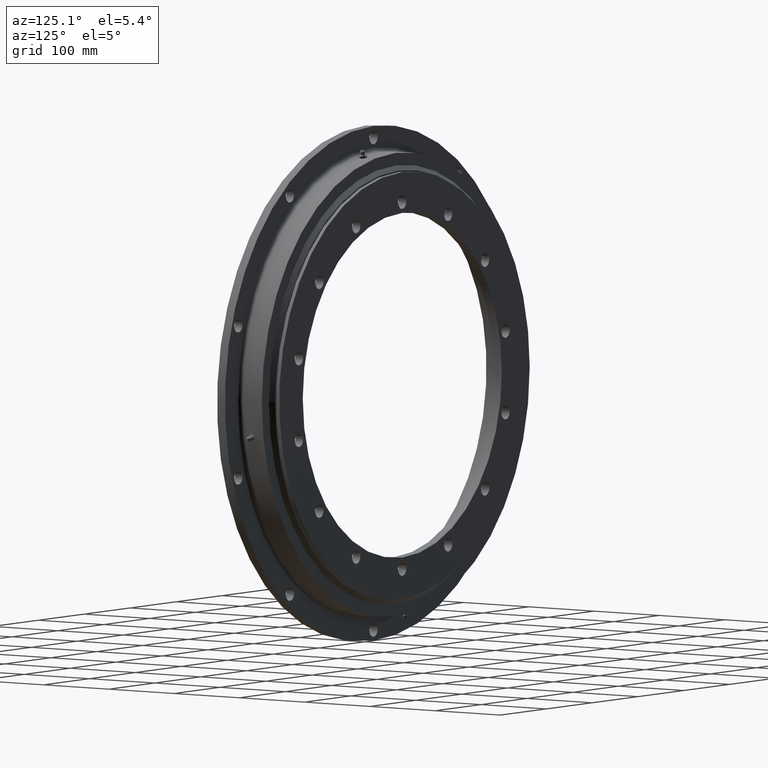
[diagram: clean part render]
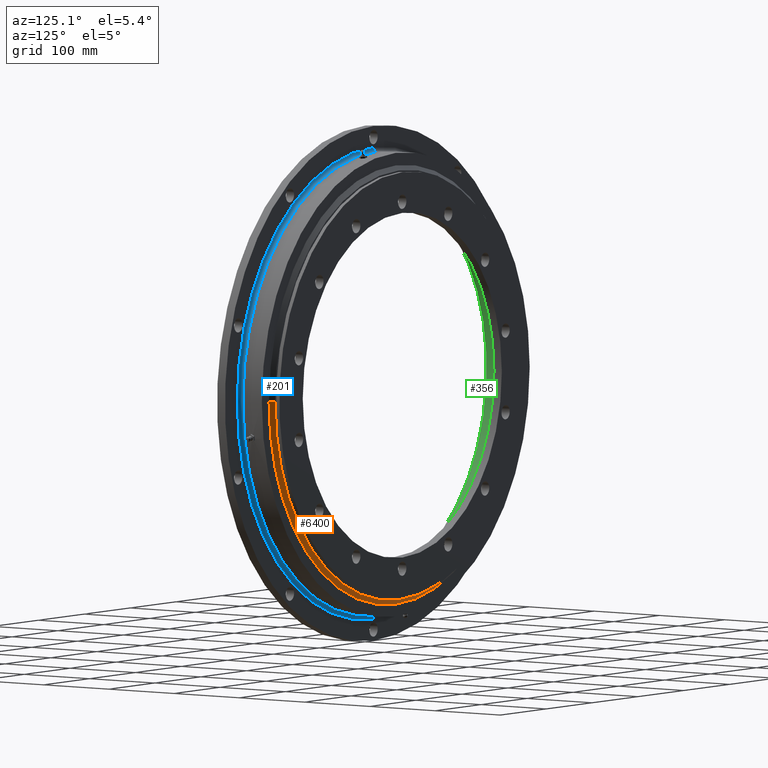
[diagram: same view with three faces highlighted in distinct colors, each labeled with its STEP entity id]
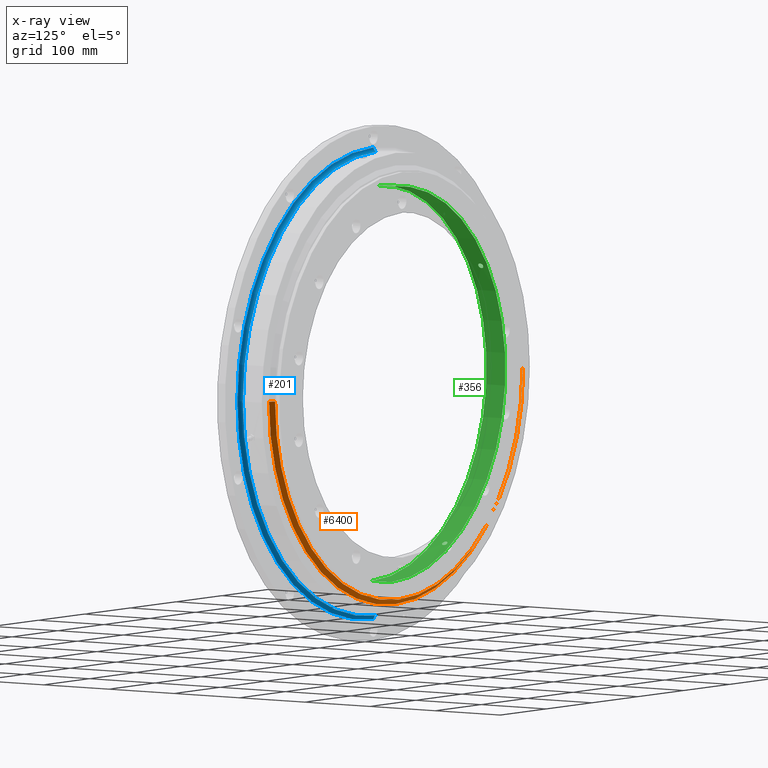
[diagram: x-ray of the same camera — body ghosted, the three highlighted faces saturated]
A machine part, auxiliary view with three faces highlighted in distinct colors.
The next image is the same camera in x-ray (body ghosted, the three faces saturated) — at least one of them is partly hidden behind the body in this view.
Their STEP definitions:

[orange] entity #6400 — the highlighted conical surface has half-angle 49.914 deg.
#272 = CARTESIAN_POINT ( 'NONE',  ( -2.489123338632563600E-015, 17.99999999999994700, 0.0000000000000000000 ) ) ;
#615 = CARTESIAN_POINT ( 'NONE',  ( -1.561484025612103000E-015, 23.05000000000000100, 0.0000000000000000000 ) ) ;
#645 = CARTESIAN_POINT ( 'NONE',  ( -276.2500000000000000, 18.00000000000000000, 3.383086782644563500E-014 ) ) ;
#846 = VERTEX_POINT ( 'NONE', #9265 ) ;
#1116 = DIRECTION ( 'NONE',  ( 1.836909530733565900E-016, 1.000000000000000000, -0.0000000000000000000 ) ) ;
#1564 = CARTESIAN_POINT ( 'NONE',  ( -276.2500000000000000, 18.00000000000000000, 3.383086782644562900E-014 ) ) ;
#2020 = ORIENTED_EDGE ( 'NONE', *, *, #5658, .F. ) ;
#2304 = CARTESIAN_POINT ( 'NONE',  ( 276.2500000000000000, 17.99999999999989300, 0.0000000000000000000 ) ) ;
#2428 = CIRCLE ( 'NONE', #8166, 270.2500000000000000 ) ;
#2591 = VECTOR ( 'NONE', #7194, 1000.000000000000000 ) ;
#2609 = EDGE_CURVE ( 'NONE', #6882, #5437, #9114, .T. ) ;
#2905 = CARTESIAN_POINT ( 'NONE',  ( 276.2500000000000000, 17.99999999999989300, 0.0000000000000000000 ) ) ;
#3242 = CARTESIAN_POINT ( 'NONE',  ( -2.489123338632563600E-015, 17.99999999999994700, 0.0000000000000000000 ) ) ;
#3772 = VECTOR ( 'NONE', #9684, 1000.000000000000000 ) ;
#3850 = CONICAL_SURFACE ( 'NONE', #6589, 276.2500000000000000, 0.8711601305813050400 ) ;
#4078 = FACE_OUTER_BOUND ( 'NONE', #4710, .T. ) ;
#4359 = DIRECTION ( 'NONE',  ( 1.836909530733565900E-016, 1.000000000000000000, -0.0000000000000000000 ) ) ;
#4448 = EDGE_CURVE ( 'NONE', #846, #5437, #6606, .T. ) ;
#4617 = ORIENTED_EDGE ( 'NONE', *, *, #2609, .T. ) ;
#4710 = EDGE_LOOP ( 'NONE', ( #8054, #2020, #8281, #4617 ) ) ;
#5130 = DIRECTION ( 'NONE',  ( -1.000000000000000000, 1.797308319235914800E-016, 0.0000000000000000000 ) ) ;
#5323 = VERTEX_POINT ( 'NONE', #7150 ) ;
#5437 = VERTEX_POINT ( 'NONE', #1564 ) ;
#5658 = EDGE_CURVE ( 'NONE', #5323, #846, #2428, .T. ) ;
#6107 = DIRECTION ( 'NONE',  ( -1.836909530733565900E-016, -1.000000000000000000, 0.0000000000000000000 ) ) ;
#6400 = ADVANCED_FACE ( 'NONE', ( #4078 ), #3850, .T. ) ;
#6411 = DIRECTION ( 'NONE',  ( -1.000000000000000000, 1.883862598345853800E-016, 0.0000000000000000000 ) ) ;
#6589 = AXIS2_PLACEMENT_3D ( 'NONE', #3242, #6107, #7046 ) ;
#6606 = LINE ( 'NONE', #645, #2591 ) ;
#6882 = VERTEX_POINT ( 'NONE', #2304 ) ;
#7046 = DIRECTION ( 'NONE',  ( 1.000000000000000000, -1.883862598345853800E-016, 0.0000000000000000000 ) ) ;
#7150 = CARTESIAN_POINT ( 'NONE',  ( 270.2500000000000000, 23.04999999999995100, 0.0000000000000000000 ) ) ;
#7194 = DIRECTION ( 'NONE',  ( -0.7650765054985539900, -0.6439393921279558100, 9.369484935616464100E-017 ) ) ;
#7752 = LINE ( 'NONE', #2905, #3772 ) ;
#8054 = ORIENTED_EDGE ( 'NONE', *, *, #4448, .F. ) ;
#8166 = AXIS2_PLACEMENT_3D ( 'NONE', #615, #4359, #5130 ) ;
#8281 = ORIENTED_EDGE ( 'NONE', *, *, #8733, .T. ) ;
#8733 = EDGE_CURVE ( 'NONE', #5323, #6882, #7752, .T. ) ;
#9114 = CIRCLE ( 'NONE', #9679, 276.2500000000000000 ) ;
#9265 = CARTESIAN_POINT ( 'NONE',  ( -270.2500000000000000, 23.05000000000005000, 3.346347378670143000E-014 ) ) ;
#9679 = AXIS2_PLACEMENT_3D ( 'NONE', #272, #1116, #6411 ) ;
#9684 = DIRECTION ( 'NONE',  ( 0.7650765054985537700, -0.6439393921279560300, 0.0000000000000000000 ) ) ;

[blue] entity #201 — the highlighted toroidal blend (fillet) surface has major radius 297 mm and minor (blend) radius 5 mm.
#81 = CARTESIAN_POINT ( 'NONE',  ( 0.0000000000000000000, -11.00000000000004100, 292.0000000000000600 ) ) ;
#201 = ADVANCED_FACE ( 'NONE', ( #1588 ), #1465, .F. ) ;
#580 = VERTEX_POINT ( 'NONE', #1121 ) ;
#1121 = CARTESIAN_POINT ( 'NONE',  ( 0.0000000000000000000, -16.00000000000004300, 297.0000000000000600 ) ) ;
#1139 = ORIENTED_EDGE ( 'NONE', *, *, #5475, .T. ) ;
#1282 = CARTESIAN_POINT ( 'NONE',  ( 0.0000000000000000000, -10.99999999999994700, 0.0000000000000000000 ) ) ;
#1414 = CARTESIAN_POINT ( 'NONE',  ( 0.0000000000000000000, -11.00000000000004300, 297.0000000000000600 ) ) ;
#1465 = TOROIDAL_SURFACE ( 'NONE', #7799, 297.0000000000000600, 5.000000000000000000 ) ;
#1588 = FACE_OUTER_BOUND ( 'NONE', #1645, .T. ) ;
#1645 = EDGE_LOOP ( 'NONE', ( #9761, #4329, #1139, #2709 ) ) ;
#1966 = EDGE_CURVE ( 'NONE', #4881, #580, #8979, .T. ) ;
#2283 = DIRECTION ( 'NONE',  ( 0.0000000000000000000, 0.0000000000000000000, 1.000000000000000000 ) ) ;
#2389 = DIRECTION ( 'NONE',  ( 1.000000000000000000, -3.962981998659108200E-032, 1.224646799147353200E-016 ) ) ;
#2461 = CARTESIAN_POINT ( 'NONE',  ( 3.637200993467639600E-014, -15.99999999999985100, -297.0000000000000600 ) ) ;
#2650 = CIRCLE ( 'NONE', #5917, 292.0000000000000600 ) ;
#2709 = ORIENTED_EDGE ( 'NONE', *, *, #1966, .F. ) ;
#2964 = AXIS2_PLACEMENT_3D ( 'NONE', #3637, #5192, #9694 ) ;
#3042 = CIRCLE ( 'NONE', #6328, 5.000000000000004400 ) ;
#3137 = DIRECTION ( 'NONE',  ( 1.224646799147349500E-016, 0.0000000000000000000, -1.000000000000000000 ) ) ;
#3637 = CARTESIAN_POINT ( 'NONE',  ( 0.0000000000000000000, -15.99999999999994800, -1.618010189312661700E-015 ) ) ;
#4329 = ORIENTED_EDGE ( 'NONE', *, *, #6571, .F. ) ;
#4704 = AXIS2_PLACEMENT_3D ( 'NONE', #6927, #2389, #3137 ) ;
#4860 = DIRECTION ( 'NONE',  ( -0.0000000000000000000, 1.000000000000000000, 3.236020378625323200E-016 ) ) ;
#4881 = VERTEX_POINT ( 'NONE', #2461 ) ;
#5040 = CARTESIAN_POINT ( 'NONE',  ( 0.0000000000000000000, -10.99999999999994700, 0.0000000000000000000 ) ) ;
#5192 = DIRECTION ( 'NONE',  ( 0.0000000000000000000, -1.000000000000000000, -3.236020378625323200E-016 ) ) ;
#5412 = DIRECTION ( 'NONE',  ( -1.000000000000000000, -0.0000000000000000000, 0.0000000000000000000 ) ) ;
#5475 = EDGE_CURVE ( 'NONE', #6337, #580, #3042, .T. ) ;
#5841 = CARTESIAN_POINT ( 'NONE',  ( 3.575968653510272000E-014, -10.99999999999985400, -292.0000000000000600 ) ) ;
#5892 = VERTEX_POINT ( 'NONE', #5841 ) ;
#5917 = AXIS2_PLACEMENT_3D ( 'NONE', #5040, #4860, #9358 ) ;
#6328 = AXIS2_PLACEMENT_3D ( 'NONE', #1414, #5412, #2283 ) ;
#6337 = VERTEX_POINT ( 'NONE', #81 ) ;
#6523 = DIRECTION ( 'NONE',  ( -0.0000000000000000000, 1.000000000000000000, 3.236020378625323200E-016 ) ) ;
#6571 = EDGE_CURVE ( 'NONE', #6337, #5892, #2650, .T. ) ;
#6758 = EDGE_CURVE ( 'NONE', #5892, #4881, #7270, .T. ) ;
#6927 = CARTESIAN_POINT ( 'NONE',  ( 3.637200993467639600E-014, -10.99999999999985300, -297.0000000000000600 ) ) ;
#7270 = CIRCLE ( 'NONE', #4704, 5.000000000000004400 ) ;
#7799 = AXIS2_PLACEMENT_3D ( 'NONE', #1282, #6523, #8272 ) ;
#8272 = DIRECTION ( 'NONE',  ( 0.0000000000000000000, -3.236020378625323200E-016, 1.000000000000000000 ) ) ;
#8979 = CIRCLE ( 'NONE', #2964, 297.0000000000000600 ) ;
#9358 = DIRECTION ( 'NONE',  ( 0.0000000000000000000, -3.208050263792725000E-016, 1.000000000000000000 ) ) ;
#9694 = DIRECTION ( 'NONE',  ( 0.0000000000000000000, -3.270859079282867900E-016, 1.000000000000000000 ) ) ;
#9761 = ORIENTED_EDGE ( 'NONE', *, *, #6758, .F. ) ;

[green] entity #356 — the highlighted cylindrical surface (partial cylindrical patch) has radius 249 mm, axis along (-0, 1, -0).
#66 = CARTESIAN_POINT ( 'NONE',  ( -133.9552476607360600, -3.039192992705999500, -209.8976602533063300 ) ) ;
#356 = ADVANCED_FACE ( 'NONE', ( #5037, #1243, #983 ), #8548, .F. ) ;
#364 = CARTESIAN_POINT ( 'NONE',  ( -209.5955192737221200, -2.638065025481543600, 134.4274690609647100 ) ) ;
#398 = CARTESIAN_POINT ( 'NONE',  ( -211.7628271917745300, -3.036880724135111000, 130.9867979625639100 ) ) ;
#505 = B_SPLINE_CURVE_WITH_KNOTS ( 'NONE', 3,
 ( #7198, #4925, #3300, #1492, #4565, #3594, #8853, #2045, #8085, #7257, #3505, #6908, #6590, #4286, #6019, #6058, #3643, #8896, #4390, #9661, #2209, #6740, #1450, #5987, #661, #5237, #9739, #4465, #2845, #8408, #3148, #8921, #551, #5547 ),
 .UNSPECIFIED., .F., .F.,
 ( 4, 2, 2, 2, 2, 2, 2, 2, 2, 2, 2, 2, 2, 2, 2, 2, 4 ),
 ( 1.005918009339813300E-018, 0.0006839209364653335300, 0.001367841872930666200, 0.002051762809395998500, 0.002735683745861331100, 0.003419604682326663600, 0.004103525618791996200, 0.004787446555257328700, 0.005471367491722661300, 0.006155288428187993800, 0.006839209364653326400, 0.007523130301118658900, 0.008207051237583992300, 0.008890972174049325800, 0.009574893110514657400, 0.01025881404697998900, 0.01094273498344532300 ),
 .UNSPECIFIED. ) ;
#551 = CARTESIAN_POINT ( 'NONE',  ( -129.4993645847201800, 0.2284312761701815200, -212.6756087851960300 ) ) ;
#661 = CARTESIAN_POINT ( 'NONE',  ( -130.5136458932120700, 2.638803690987895600, -212.0547451489569300 ) ) ;
#781 = CIRCLE ( 'NONE', #1902, 249.0000000000000000 ) ;
#824 = DIRECTION ( 'NONE',  ( -0.0000000000000000000, 1.000000000000000000, 3.092576026240644600E-016 ) ) ;
#836 = CARTESIAN_POINT ( 'NONE',  ( -212.0547451489582300, 2.638803690987897800, 130.5136458932098500 ) ) ;
#855 = CARTESIAN_POINT ( 'NONE',  ( -129.4993645847202100, -0.2283796792909729700, -212.6756087851959800 ) ) ;
#962 = CARTESIAN_POINT ( 'NONE',  ( -212.5827242606470700, 1.127098599357942300, 129.6518147350323000 ) ) ;
#983 = FACE_OUTER_BOUND ( 'NONE', #8872, .T. ) ;
#1101 = CARTESIAN_POINT ( 'NONE',  ( -209.8959543662124100, 3.037488759782581900, 133.9579223150732000 ) ) ;
#1120 = CARTESIAN_POINT ( 'NONE',  ( -212.6756087851973100, 3.803813320755339400E-009, 129.4993645847179400 ) ) ;
#1143 = CARTESIAN_POINT ( 'NONE',  ( -209.8976602533077500, -3.039192992705995500, 133.9552476607339000 ) ) ;
#1181 = CARTESIAN_POINT ( 'NONE',  ( -212.0571188751615100, -2.634578834907197000, 130.5097863380479500 ) ) ;
#1243 = FACE_BOUND ( 'NONE', #6481, .T. ) ;
#1450 = CARTESIAN_POINT ( 'NONE',  ( -130.9869306191036500, 3.036908483964677200, -211.7627445480400500 ) ) ;
#1492 = CARTESIAN_POINT ( 'NONE',  ( -135.3327500542261800, 0.9060139191157143800, -209.0120779760661100 ) ) ;
#1512 = ORIENTED_EDGE ( 'NONE', *, *, #4481, .F. ) ;
#1671 = CARTESIAN_POINT ( 'NONE',  ( -129.4993645847201500, 3.803813320755339400E-009, -212.6756087851959500 ) ) ;
#1682 = CARTESIAN_POINT ( 'NONE',  ( -132.8620885939234600, -3.477621153280395600, -210.5913469646470700 ) ) ;
#1786 = CARTESIAN_POINT ( 'NONE',  ( -135.1281516626084500, -1.553257360428380800, -209.1444244459792400 ) ) ;
#1815 = CARTESIAN_POINT ( 'NONE',  ( -129.5946852593235400, -0.9064425824996655800, -212.6175429119406300 ) ) ;
#1902 = AXIS2_PLACEMENT_3D ( 'NONE', #7822, #824, #9601 ) ;
#1909 = CARTESIAN_POINT ( 'NONE',  ( -210.2335993334406800, -3.322145974155878100, 133.4274288492766500 ) ) ;
#1942 = CARTESIAN_POINT ( 'NONE',  ( -212.3016739251331200, -2.135343319766442900, 130.1115507287242400 ) ) ;
#2003 = VERTEX_POINT ( 'NONE', #4953 ) ;
#2045 = CARTESIAN_POINT ( 'NONE',  ( -134.8248293168901200, 2.133735465147406100, -209.3401097170421100 ) ) ;
#2196 = CARTESIAN_POINT ( 'NONE',  ( 3.049370529876909600E-014, 11.00000000000012100, -249.0000000000000000 ) ) ;
#2209 = CARTESIAN_POINT ( 'NONE',  ( -131.5212563102867000, 3.321846954922515100, -211.4313222639217100 ) ) ;
#2264 = CARTESIAN_POINT ( 'NONE',  ( -208.9637310324072500, 0.4586469681017156800, 135.4073893483238200 ) ) ;
#2327 = CARTESIAN_POINT ( 'NONE',  ( -130.6629329373159600, -2.782416143468026800, -211.9628131936292200 ) ) ;
#2352 = CARTESIAN_POINT ( 'NONE',  ( -209.4201575776497200, 2.313876508141624800, 134.7004962268976800 ) ) ;
#2433 = VERTEX_POINT ( 'NONE', #6710 ) ;
#2445 = ORIENTED_EDGE ( 'NONE', *, *, #8268, .T. ) ;
#2476 = CARTESIAN_POINT ( 'NONE',  ( -210.7122090767036300, 3.499918851252144400, 132.6703322542259100 ) ) ;
#2632 = CARTESIAN_POINT ( 'NONE',  ( -208.9513842492944200, 3.803816043236555000E-009, 135.4264339791302200 ) ) ;
#2645 = CARTESIAN_POINT ( 'NONE',  ( -208.9513842492944800, 0.2312562097090273300, 135.4264339791302200 ) ) ;
#2658 = CARTESIAN_POINT ( 'NONE',  ( -210.5913469646484100, -3.477621153280393800, 132.8620885939212700 ) ) ;
#2691 = CARTESIAN_POINT ( 'NONE',  ( -212.4917398537302800, -1.548908870574796900, 129.8008786214017200 ) ) ;
#2845 = CARTESIAN_POINT ( 'NONE',  ( -129.8017908646099300, 1.551322420540758300, -212.4911828912096600 ) ) ;
#2979 = DIRECTION ( 'NONE',  ( 0.0000000000000000000, 2.786704379079208300E-017, 1.000000000000000000 ) ) ;
#2998 = CARTESIAN_POINT ( 'NONE',  ( -134.4274690609668400, -2.638065025481543600, -209.5955192737206700 ) ) ;
#3057 = CARTESIAN_POINT ( 'NONE',  ( -209.3401097170435300, 2.133735465147407900, 134.8248293168879300 ) ) ;
#3148 = CARTESIAN_POINT ( 'NONE',  ( -129.5953189161901700, 0.9088880394704336200, -212.6171566830404300 ) ) ;
#3177 = EDGE_CURVE ( 'NONE', #7762, #5911, #5674, .T. ) ;
#3300 = CARTESIAN_POINT ( 'NONE',  ( -135.4073893483260100, 0.4586469681017222900, -208.9637310324058600 ) ) ;
#3406 = CARTESIAN_POINT ( 'NONE',  ( -209.0019639385551200, -0.9217566670529717700, 135.3484749237991600 ) ) ;
#3447 = CARTESIAN_POINT ( 'NONE',  ( -210.9586654491693000, -3.499804695886620000, 132.2780961686687200 ) ) ;
#3474 = CARTESIAN_POINT ( 'NONE',  ( -212.6175429119419700, -0.9064425824996649200, 129.5946852593213500 ) ) ;
#3505 = CARTESIAN_POINT ( 'NONE',  ( -134.2803430127195600, 2.781634862930489200, -209.6898330646020600 ) ) ;
#3594 = CARTESIAN_POINT ( 'NONE',  ( -135.1286803559682700, 1.552202725554150600, -209.1440830278752100 ) ) ;
#3609 = ORIENTED_EDGE ( 'NONE', *, *, #5368, .T. ) ;
#3643 = CARTESIAN_POINT ( 'NONE',  ( -132.6703322542281000, 3.499918851252145300, -210.7122090767022700 ) ) ;
#3824 = CARTESIAN_POINT ( 'NONE',  ( -212.6756087851973100, 3.803813320755339400E-009, 129.4993645847179400 ) ) ;
#3833 = CARTESIAN_POINT ( 'NONE',  ( -131.1576539722686100, -3.144456100265586400, -211.6570683288260600 ) ) ;
#3890 = CARTESIAN_POINT ( 'NONE',  ( -135.4264339791324100, 3.803811857034262100E-009, -208.9513842492930000 ) ) ;
#3915 = CARTESIAN_POINT ( 'NONE',  ( -209.5947178577440900, 2.636753831097462100, 134.4287183966014000 ) ) ;
#3916 = CARTESIAN_POINT ( 'NONE',  ( 0.0000000000000000000, 31.02910628019324300, -1.692367527159823000E-015 ) ) ;
#3952 = CARTESIAN_POINT ( 'NONE',  ( -130.1115507287264800, -2.135343319766441100, -212.3016739251317800 ) ) ;
#3993 = ORIENTED_EDGE ( 'NONE', *, *, #4932, .T. ) ;
#4006 = CARTESIAN_POINT ( 'NONE',  ( -211.6548514203834400, 3.146546638821535100, 131.1612319472559100 ) ) ;
#4033 = CARTESIAN_POINT ( 'NONE',  ( -129.4993645847201500, 3.803813320755339400E-009, -212.6756087851959500 ) ) ;
#4120 = AXIS2_PLACEMENT_3D ( 'NONE', #8796, #6231, #5797 ) ;
#4123 = CARTESIAN_POINT ( 'NONE',  ( -129.8932090483507400, -1.751997955652013300, -212.4353328134667400 ) ) ;
#4167 = CARTESIAN_POINT ( 'NONE',  ( -209.2037098915932600, -1.757442371544433600, 135.0363807519458100 ) ) ;
#4169 = CARTESIAN_POINT ( 'NONE',  ( 3.049370529876909600E-014, 31.02910628019323600, -249.0000000000000000 ) ) ;
#4195 = CARTESIAN_POINT ( 'NONE',  ( -211.3162272642924800, -3.387787568883347900, 131.7061203251465700 ) ) ;
#4241 = CARTESIAN_POINT ( 'NONE',  ( -131.5171742318919700, -3.320200361316854500, -211.4338611744128400 ) ) ;
#4286 = CARTESIAN_POINT ( 'NONE',  ( -133.4306770830109500, 3.320721128682035500, -210.2315361005568700 ) ) ;
#4297 = CARTESIAN_POINT ( 'NONE',  ( -133.2401114417888300, -3.389071272412557800, -210.3523774643480800 ) ) ;
#4334 = CARTESIAN_POINT ( 'NONE',  ( -208.9513842492944200, 3.803816043236555000E-009, 135.4264339791302200 ) ) ;
#4368 = CARTESIAN_POINT ( 'NONE',  ( -208.9513842492944200, 3.803816043236555000E-009, 135.4264339791302200 ) ) ;
#4390 = CARTESIAN_POINT ( 'NONE',  ( -132.0872436926009600, 3.477323297104930200, -211.0782092854834100 ) ) ;
#4465 = CARTESIAN_POINT ( 'NONE',  ( -129.8952682259995600, 1.755857414246502700, -212.4340729698047900 ) ) ;
#4481 = EDGE_CURVE ( 'NONE', #2433, #2003, #4610, .T. ) ;
#4565 = CARTESIAN_POINT ( 'NONE',  ( -135.2762492065590200, 1.128307161587631900, -209.0486644801185900 ) ) ;
#4586 = CARTESIAN_POINT ( 'NONE',  ( -210.0055141859171500, 3.146202878318003800, 133.7861292120339300 ) ) ;
#4610 = LINE ( 'NONE', #9558, #8365 ) ;
#4639 = VERTEX_POINT ( 'NONE', #7390 ) ;
#4642 = CARTESIAN_POINT ( 'NONE',  ( -135.0363807519479700, -1.757442371544438700, -209.2037098915918400 ) ) ;
#4677 = CARTESIAN_POINT ( 'NONE',  ( -209.0120779760675000, 0.9060139191157068300, 135.3327500542239900 ) ) ;
#4688 = CARTESIAN_POINT ( 'NONE',  ( -132.2780961686708600, -3.499804695886619600, -210.9586654491678800 ) ) ;
#4712 = CARTESIAN_POINT ( 'NONE',  ( -209.6898330646034800, 2.781634862930491400, 134.2803430127173400 ) ) ;
#4737 = EDGE_CURVE ( 'NONE', #4639, #2433, #6244, .T. ) ;
#4742 = CARTESIAN_POINT ( 'NONE',  ( -212.4911828912110300, 1.551322420540760300, 129.8017908646077100 ) ) ;
#4803 = EDGE_CURVE ( 'NONE', #7277, #9657, #9508, .T. ) ;
#4837 = ORIENTED_EDGE ( 'NONE', *, *, #4803, .T. ) ;
#4885 = CARTESIAN_POINT ( 'NONE',  ( -209.0486644801199500, 1.128307161587636100, 135.2762492065568000 ) ) ;
#4902 = B_SPLINE_CURVE_WITH_KNOTS ( 'NONE', 3,
 ( #4368, #2645, #2264, #4677, #4885, #9560, #9724, #3057, #2352, #3915, #4712, #1101, #4586, #7669, #9321, #7731, #2476, #9795, #7952, #5612, #8811, #4006, #8502, #6247, #836, #5825, #6088, #8474, #4742, #962, #5762, #6824, #9061, #3824 ),
 .UNSPECIFIED., .F., .F.,
 ( 4, 2, 2, 2, 2, 2, 2, 2, 2, 2, 2, 2, 2, 2, 2, 2, 4 ),
 ( 5.653463316397840400E-019, 0.0006839209364653313600, 0.001367841872930662300, 0.002051762809395992900, 0.002735683745861323700, 0.003419604682326654500, 0.004103525618791985800, 0.004787446555257316600, 0.005471367491722647400, 0.006155288428187978200, 0.006839209364653309000, 0.007523130301118639800, 0.008207051237583969800, 0.008890972174049299700, 0.009574893110514631400, 0.01025881404697996300, 0.01094273498344529300 ),
 .UNSPECIFIED. ) ;
#4925 = CARTESIAN_POINT ( 'NONE',  ( -135.4264339791324100, 0.2312562097090270800, -208.9513842492929700 ) ) ;
#4929 = CARTESIAN_POINT ( 'NONE',  ( -209.4207793724323200, -2.315196367174262400, 134.6995297126195200 ) ) ;
#4932 = EDGE_CURVE ( 'NONE', #5676, #2003, #781, .T. ) ;
#4953 = CARTESIAN_POINT ( 'NONE',  ( 0.0000000000000000000, 10.99999999999996800, 249.0000000000000000 ) ) ;
#4968 = CARTESIAN_POINT ( 'NONE',  ( -211.6570683288275600, -3.144456100265582000, 131.1576539722664400 ) ) ;
#4977 = CARTESIAN_POINT ( 'NONE',  ( -131.7061203251488500, -3.387787568883354500, -211.3162272642911400 ) ) ;
#5037 = FACE_BOUND ( 'NONE', #8000, .T. ) ;
#5106 = AXIS2_PLACEMENT_3D ( 'NONE', #3916, #5980, #2979 ) ;
#5237 = CARTESIAN_POINT ( 'NONE',  ( -130.2351964875827300, 2.312148491506855800, -212.2258709497230300 ) ) ;
#5317 = VECTOR ( 'NONE', #9433, 1000.000000000000000 ) ;
#5367 = CARTESIAN_POINT ( 'NONE',  ( -133.4274288492788700, -3.322145974155880300, -210.2335993334392000 ) ) ;
#5368 = EDGE_CURVE ( 'NONE', #5911, #7762, #4902, .T. ) ;
#5489 = CARTESIAN_POINT ( 'NONE',  ( -132.0855773324250300, -3.477012796206293600, -211.0792512235061100 ) ) ;
#5547 = CARTESIAN_POINT ( 'NONE',  ( -129.4993645847201500, 3.803813320755339400E-009, -212.6756087851959500 ) ) ;
#5612 = CARTESIAN_POINT ( 'NONE',  ( -211.3160030990911200, 3.387953356627419100, 131.7064812972382400 ) ) ;
#5657 = CARTESIAN_POINT ( 'NONE',  ( -135.4264339791324100, 3.803811857034262100E-009, -208.9513842492930000 ) ) ;
#5674 = B_SPLINE_CURVE_WITH_KNOTS ( 'NONE', 3,
 ( #8744, #5756, #7297, #3474, #7983, #2691, #7237, #1942, #6469, #1181, #5726, #398, #4968, #9465, #4195, #8705, #3447, #7945, #2658, #7201, #1909, #6431, #1143, #5698, #364, #4929, #9431, #4167, #8665, #3406, #7917, #2632 ),
 .UNSPECIFIED., .F., .F.,
 ( 4, 2, 2, 2, 2, 2, 2, 2, 2, 2, 2, 2, 2, 2, 2, 4 ),
 ( 0.01094273498344529300, 0.01162650146214936500, 0.01231026794085343500, 0.01299403441955750500, 0.01367780089826157700, 0.01436156737696564800, 0.01504533385566972000, 0.01572910033437379200, 0.01641286681307786400, 0.01709663329178193500, 0.01778039977048600400, 0.01846416624919007500, 0.01914793272789414700, 0.01983169920659821900, 0.02051546568530229100, 0.02188299864271041300 ),
 .UNSPECIFIED. ) ;
#5676 = VERTEX_POINT ( 'NONE', #2196 ) ;
#5698 = CARTESIAN_POINT ( 'NONE',  ( -209.6928283339627200, -2.785756676898939700, 134.2756638448114800 ) ) ;
#5726 = CARTESIAN_POINT ( 'NONE',  ( -211.9628131936306100, -2.782416143468030800, 130.6629329373137400 ) ) ;
#5756 = CARTESIAN_POINT ( 'NONE',  ( -212.6756087851973400, -0.2283796792909721400, 129.4993645847179400 ) ) ;
#5762 = CARTESIAN_POINT ( 'NONE',  ( -212.6171566830418600, 0.9088880394704327300, 129.5953189161879500 ) ) ;
#5797 = DIRECTION ( 'NONE',  ( 0.0000000000000000000, 2.786704379079208300E-017, 1.000000000000000000 ) ) ;
#5825 = CARTESIAN_POINT ( 'NONE',  ( -212.2258709497244500, 2.312148491506858400, 130.2351964875804500 ) ) ;
#5911 = VERTEX_POINT ( 'NONE', #4334 ) ;
#5980 = DIRECTION ( 'NONE',  ( -0.0000000000000000000, 1.000000000000000000, -2.727064569436389700E-017 ) ) ;
#5987 = CARTESIAN_POINT ( 'NONE',  ( -130.6641822977787200, 2.783473939147284700, -211.9620424415305100 ) ) ;
#6019 = CARTESIAN_POINT ( 'NONE',  ( -133.2443986940399700, 3.387876569234338700, -210.3496642672848800 ) ) ;
#6058 = CARTESIAN_POINT ( 'NONE',  ( -132.8624720658685600, 3.477719464219531700, -210.5911074980186600 ) ) ;
#6088 = CARTESIAN_POINT ( 'NONE',  ( -212.3017181522117500, 2.134968099057096900, 130.1114773402544800 ) ) ;
#6231 = DIRECTION ( 'NONE',  ( -0.0000000000000000000, 1.000000000000000000, -2.727064569436389700E-017 ) ) ;
#6244 = CIRCLE ( 'NONE', #4120, 249.0000000000000000 ) ;
#6247 = CARTESIAN_POINT ( 'NONE',  ( -211.9620424415319100, 2.783473939147286900, 130.6641822977765100 ) ) ;
#6431 = CARTESIAN_POINT ( 'NONE',  ( -210.0058041847479200, -3.146593288702674900, 133.7856766127817100 ) ) ;
#6469 = CARTESIAN_POINT ( 'NONE',  ( -212.2259554814071100, -2.311676372460632000, 130.2350560165775400 ) ) ;
#6481 = EDGE_LOOP ( 'NONE', ( #7710, #4837 ) ) ;
#6590 = CARTESIAN_POINT ( 'NONE',  ( -133.7861292120361400, 3.146202878318007400, -210.0055141859157300 ) ) ;
#6654 = ORIENTED_EDGE ( 'NONE', *, *, #4737, .F. ) ;
#6710 = CARTESIAN_POINT ( 'NONE',  ( 0.0000000000000000000, -18.00000000000001400, 249.0000000000000000 ) ) ;
#6740 = CARTESIAN_POINT ( 'NONE',  ( -131.1612319472581300, 3.146546638821544000, -211.6548514203820200 ) ) ;
#6768 = CARTESIAN_POINT ( 'NONE',  ( -134.6995297126217400, -2.315196367174261900, -209.4207793724308700 ) ) ;
#6824 = CARTESIAN_POINT ( 'NONE',  ( -212.6637058781697600, 0.4604168928530262800, 129.5189183213514600 ) ) ;
#6869 = EDGE_CURVE ( 'NONE', #9657, #7277, #505, .T. ) ;
#6908 = CARTESIAN_POINT ( 'NONE',  ( -133.9579223150753900, 3.037488759782580100, -209.8959543662109900 ) ) ;
#6994 = CARTESIAN_POINT ( 'NONE',  ( -130.2350560165797900, -2.311676372460641700, -212.2259554814057800 ) ) ;
#7073 = CARTESIAN_POINT ( 'NONE',  ( -132.6688936234230000, -3.500192821368973900, -210.7131175765738100 ) ) ;
#7110 = CARTESIAN_POINT ( 'NONE',  ( -129.6520846871294500, -1.127694622239796100, -212.5825593345669200 ) ) ;
#7125 = CARTESIAN_POINT ( 'NONE',  ( -129.5182768046862200, -0.4553556886653391000, -212.6640965817190400 ) ) ;
#7198 = CARTESIAN_POINT ( 'NONE',  ( -135.4264339791324100, 3.803811857034262100E-009, -208.9513842492930000 ) ) ;
#7201 = CARTESIAN_POINT ( 'NONE',  ( -210.3523774643495300, -3.389071272412556000, 133.2401114417866700 ) ) ;
#7237 = CARTESIAN_POINT ( 'NONE',  ( -212.4353328134681400, -1.751997955652012900, 129.8932090483485500 ) ) ;
#7240 = DIRECTION ( 'NONE',  ( -0.0000000000000000000, 1.000000000000000000, -2.727064569436389700E-017 ) ) ;
#7257 = CARTESIAN_POINT ( 'NONE',  ( -134.4287183966035600, 2.636753831097461600, -209.5947178577427200 ) ) ;
#7277 = VERTEX_POINT ( 'NONE', #1671 ) ;
#7297 = CARTESIAN_POINT ( 'NONE',  ( -212.6640965817204000, -0.4553556886653382700, 129.5182768046840100 ) ) ;
#7390 = CARTESIAN_POINT ( 'NONE',  ( 3.049370529876909600E-014, -18.00000000000002800, -249.0000000000000000 ) ) ;
#7669 = CARTESIAN_POINT ( 'NONE',  ( -210.2315361005582300, 3.320721128682032000, 133.4306770830087600 ) ) ;
#7680 = CARTESIAN_POINT ( 'NONE',  ( -135.3484749238013500, -0.9217566670529741000, -209.0019639385536700 ) ) ;
#7710 = ORIENTED_EDGE ( 'NONE', *, *, #6869, .T. ) ;
#7731 = CARTESIAN_POINT ( 'NONE',  ( -210.5911074980199900, 3.477719464219530400, 132.8624720658664300 ) ) ;
#7762 = VERTEX_POINT ( 'NONE', #1120 ) ;
#7822 = CARTESIAN_POINT ( 'NONE',  ( 0.0000000000000000000, 11.00000000000004400, -1.146160866217915600E-015 ) ) ;
#7880 = CARTESIAN_POINT ( 'NONE',  ( -135.4264339791324400, -0.4624079534887395300, -208.9513842492930300 ) ) ;
#7914 = CARTESIAN_POINT ( 'NONE',  ( -130.5097863380502200, -2.634578834907205900, -212.0571188751601100 ) ) ;
#7917 = CARTESIAN_POINT ( 'NONE',  ( -208.9513842492944500, -0.4624079534887412000, 135.4264339791302500 ) ) ;
#7945 = CARTESIAN_POINT ( 'NONE',  ( -210.7131175765752000, -3.500192821368974400, 132.6688936234207600 ) ) ;
#7952 = CARTESIAN_POINT ( 'NONE',  ( -211.0782092854848000, 3.477323297104930600, 132.0872436925987800 ) ) ;
#7983 = CARTESIAN_POINT ( 'NONE',  ( -212.5825593345683400, -1.127694622239798300, 129.6520846871272600 ) ) ;
#8000 = EDGE_LOOP ( 'NONE', ( #3609, #8385 ) ) ;
#8085 = CARTESIAN_POINT ( 'NONE',  ( -134.7004962268999000, 2.313876508141625700, -209.4201575776483500 ) ) ;
#8268 = EDGE_CURVE ( 'NONE', #4639, #5676, #9300, .T. ) ;
#8365 = VECTOR ( 'NONE', #7240, 1000.000000000000000 ) ;
#8385 = ORIENTED_EDGE ( 'NONE', *, *, #3177, .T. ) ;
#8408 = CARTESIAN_POINT ( 'NONE',  ( -129.6518147350344900, 1.127098599357939900, -212.5827242606457000 ) ) ;
#8474 = CARTESIAN_POINT ( 'NONE',  ( -212.4340729698061200, 1.755857414246504900, 129.8952682259973400 ) ) ;
#8499 = CARTESIAN_POINT ( 'NONE',  ( -134.2756638448136100, -2.785756676898945000, -209.6928283339612400 ) ) ;
#8502 = CARTESIAN_POINT ( 'NONE',  ( -211.7627445480413800, 3.036908483964678500, 130.9869306191014300 ) ) ;
#8548 = CYLINDRICAL_SURFACE ( 'NONE', #5106, 249.0000000000000000 ) ;
#8656 = CARTESIAN_POINT ( 'NONE',  ( -130.9867979625660400, -3.036880724135107900, -211.7628271917730300 ) ) ;
#8665 = CARTESIAN_POINT ( 'NONE',  ( -209.1444244459806900, -1.553257360428379900, 135.1281516626062600 ) ) ;
#8705 = CARTESIAN_POINT ( 'NONE',  ( -211.0792512235075300, -3.477012796206290000, 132.0855773324228200 ) ) ;
#8744 = CARTESIAN_POINT ( 'NONE',  ( -212.6756087851973100, 3.803813320755339400E-009, 129.4993645847179400 ) ) ;
#8796 = CARTESIAN_POINT ( 'NONE',  ( 0.0000000000000000000, -18.00000000000002100, -3.553121410813607700E-016 ) ) ;
#8811 = CARTESIAN_POINT ( 'NONE',  ( -211.4313222639230800, 3.321846954922506700, 131.5212563102845100 ) ) ;
#8853 = CARTESIAN_POINT ( 'NONE',  ( -135.0383535876817700, 1.753249273957713700, -209.2024359251107100 ) ) ;
#8872 = EDGE_LOOP ( 'NONE', ( #6654, #2445, #3993, #1512 ) ) ;
#8896 = CARTESIAN_POINT ( 'NONE',  ( -132.2837431508223500, 3.500080716453155100, -210.9551217971216500 ) ) ;
#8921 = CARTESIAN_POINT ( 'NONE',  ( -129.5189183213536800, 0.4604168928530269500, -212.6637058781684300 ) ) ;
#9061 = CARTESIAN_POINT ( 'NONE',  ( -212.6756087851974000, 0.2284312761701825000, 129.4993645847179700 ) ) ;
#9300 = LINE ( 'NONE', #4169, #5317 ) ;
#9321 = CARTESIAN_POINT ( 'NONE',  ( -210.3496642672862700, 3.387876569234335100, 133.2443986940378100 ) ) ;
#9370 = CARTESIAN_POINT ( 'NONE',  ( -129.8008786214039700, -1.548908870574793500, -212.4917398537289400 ) ) ;
#9431 = CARTESIAN_POINT ( 'NONE',  ( -209.3423260402108200, -2.139171228435507600, 134.8213888337620900 ) ) ;
#9433 = DIRECTION ( 'NONE',  ( -0.0000000000000000000, 1.000000000000000000, -2.727064569436389700E-017 ) ) ;
#9465 = CARTESIAN_POINT ( 'NONE',  ( -211.4338611744142600, -3.320200361316851400, 131.5171742318897000 ) ) ;
#9504 = CARTESIAN_POINT ( 'NONE',  ( -133.7856766127838700, -3.146593288702677500, -210.0058041847465200 ) ) ;
#9508 = B_SPLINE_CURVE_WITH_KNOTS ( 'NONE', 3,
 ( #4033, #855, #7125, #1815, #7110, #9370, #4123, #3952, #6994, #7914, #2327, #8656, #3833, #4241, #4977, #5489, #4688, #7073, #1682, #4297, #5367, #9504, #66, #8499, #2998, #6768, #9701, #4642, #1786, #7680, #7880, #5657 ),
 .UNSPECIFIED., .F., .F.,
 ( 4, 2, 2, 2, 2, 2, 2, 2, 2, 2, 2, 2, 2, 2, 2, 4 ),
 ( 0.01094273498344532300, 0.01162650146214939300, 0.01231026794085346400, 0.01299403441955753400, 0.01367780089826160400, 0.01436156737696567400, 0.01504533385566974400, 0.01572910033437381600, 0.01641286681307788400, 0.01709663329178195600, 0.01778039977048602400, 0.01846416624919009600, 0.01914793272789416500, 0.01983169920659823300, 0.02051546568530230500, 0.02188299864271046200 ),
 .UNSPECIFIED. ) ;
#9558 = CARTESIAN_POINT ( 'NONE',  ( 0.0000000000000000000, 31.02910628019325000, 249.0000000000000000 ) ) ;
#9560 = CARTESIAN_POINT ( 'NONE',  ( -209.1440830278767200, 1.552202725554153300, 135.1286803559661100 ) ) ;
#9601 = DIRECTION ( 'NONE',  ( 0.0000000000000000000, 3.065374816987129200E-016, -1.000000000000000000 ) ) ;
#9657 = VERTEX_POINT ( 'NONE', #3890 ) ;
#9661 = CARTESIAN_POINT ( 'NONE',  ( -131.7064812972404600, 3.387953356627414300, -211.3160030990897800 ) ) ;
#9701 = CARTESIAN_POINT ( 'NONE',  ( -134.8213888337641900, -2.139171228435511600, -209.3423260402093700 ) ) ;
#9724 = CARTESIAN_POINT ( 'NONE',  ( -209.2024359251121300, 1.753249273957715900, 135.0383535876795500 ) ) ;
#9739 = CARTESIAN_POINT ( 'NONE',  ( -130.1114773402567300, 2.134968099057093800, -212.3017181522103800 ) ) ;
#9795 = CARTESIAN_POINT ( 'NONE',  ( -210.9551217971229600, 3.500080716453156000, 132.2837431508201600 ) ) ;